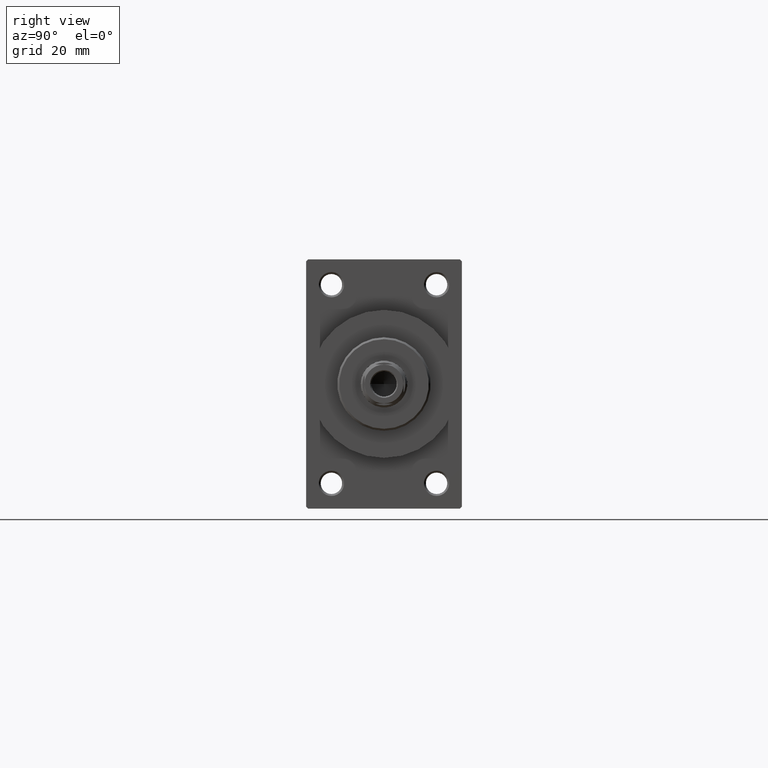
[diagram: clean part render]
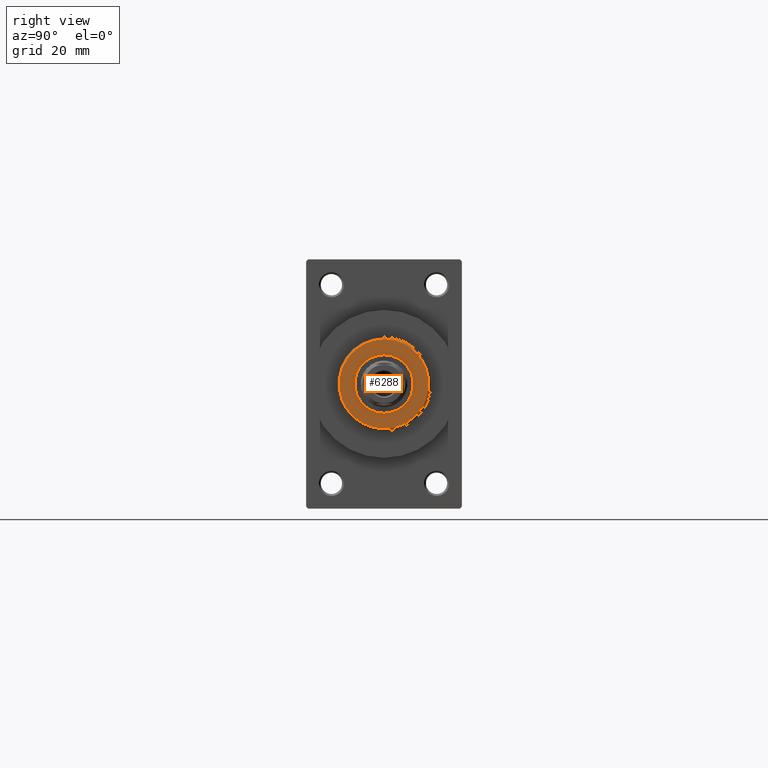
[diagram: same view with one face highlighted and labeled with its STEP entity id]
A machine part, right view. The second image highlights one B-rep face of the part: STEP entity #6288.
In plain terms, the highlighted planar face has unit normal (1, -0, -0).
Its self-contained STEP definition (entity closure, byte-faithful):
#1863 = AXIS2_PLACEMENT_3D ( 'NONE', #11728, #16950, #9825 ) ;
#3137 = ORIENTED_EDGE ( 'NONE', *, *, #20584, .F. ) ;
#3553 = VERTEX_POINT ( 'NONE', #35398 ) ;
#4023 = CIRCLE ( 'NONE', #38258, 7.500000000000000888 ) ;
#5534 = AXIS2_PLACEMENT_3D ( 'NONE', #17486, #46792, #32965 ) ;
#6288 = ADVANCED_FACE ( 'NONE', ( #31653, #20456 ), #16394, .T. ) ;
#7211 = CARTESIAN_POINT ( 'NONE',  ( 11.50000000000000355, 1.438959988998140357E-15, 50.25999999999999801 ) ) ;
#7361 = VERTEX_POINT ( 'NONE', #7211 ) ;
#9040 = DIRECTION ( 'NONE',  ( 0.000000000000000000, 0.000000000000000000, 1.000000000000000000 ) ) ;
#9825 = DIRECTION ( 'NONE',  ( 1.000000000000000000, 0.000000000000000000, 0.000000000000000000 ) ) ;
#11728 = CARTESIAN_POINT ( 'NONE',  ( 0.000000000000000000, 0.000000000000000000, 50.25999999999999801 ) ) ;
#14297 = ORIENTED_EDGE ( 'NONE', *, *, #25635, .T. ) ;
#15631 = CARTESIAN_POINT ( 'NONE',  ( 0.000000000000000000, 0.000000000000000000, 50.25999999999999801 ) ) ;
#16394 = PLANE ( 'NONE',  #24024 ) ;
#16863 = CARTESIAN_POINT ( 'NONE',  ( 0.000000000000000000, 0.000000000000000000, 50.25999999999999801 ) ) ;
#16950 = DIRECTION ( 'NONE',  ( 0.000000000000000000, 0.000000000000000000, 1.000000000000000000 ) ) ;
#17486 = CARTESIAN_POINT ( 'NONE',  ( 0.000000000000000000, 0.000000000000000000, 50.25999999999999801 ) ) ;
#17765 = CIRCLE ( 'NONE', #28426, 11.50000000000000355 ) ;
#17766 = VERTEX_POINT ( 'NONE', #31430 ) ;
#18569 = EDGE_CURVE ( 'NONE', #3553, #26526, #33671, .T. ) ;
#20310 = ORIENTED_EDGE ( 'NONE', *, *, #26906, .T. ) ;
#20456 = FACE_OUTER_BOUND ( 'NONE', #24825, .T. ) ;
#20584 = EDGE_CURVE ( 'NONE', #26526, #3553, #4023, .T. ) ;
#24024 = AXIS2_PLACEMENT_3D ( 'NONE', #16863, #9040, #41890 ) ;
#24825 = EDGE_LOOP ( 'NONE', ( #20310, #14297 ) ) ;
#25425 = DIRECTION ( 'NONE',  ( 0.000000000000000000, 0.000000000000000000, 1.000000000000000000 ) ) ;
#25635 = EDGE_CURVE ( 'NONE', #7361, #17766, #17765, .T. ) ;
#26526 = VERTEX_POINT ( 'NONE', #30858 ) ;
#26906 = EDGE_CURVE ( 'NONE', #17766, #7361, #35304, .T. ) ;
#28194 = DIRECTION ( 'NONE',  ( 0.000000000000000000, 0.000000000000000000, 1.000000000000000000 ) ) ;
#28426 = AXIS2_PLACEMENT_3D ( 'NONE', #15631, #25425, #37547 ) ;
#30858 = CARTESIAN_POINT ( 'NONE',  ( 7.500000000000000888, 0.000000000000000000, 50.25999999999999801 ) ) ;
#31430 = CARTESIAN_POINT ( 'NONE',  ( -11.50000000000000355, 0.000000000000000000, 50.25999999999999801 ) ) ;
#31653 = FACE_BOUND ( 'NONE', #38469, .T. ) ;
#32965 = DIRECTION ( 'NONE',  ( 1.000000000000000000, 0.000000000000000000, 0.000000000000000000 ) ) ;
#33671 = CIRCLE ( 'NONE', #5534, 7.500000000000000888 ) ;
#35304 = CIRCLE ( 'NONE', #1863, 11.50000000000000355 ) ;
#35398 = CARTESIAN_POINT ( 'NONE',  ( -7.500000000000000888, 9.184850993605149917E-16, 50.25999999999999801 ) ) ;
#37089 = ORIENTED_EDGE ( 'NONE', *, *, #18569, .F. ) ;
#37547 = DIRECTION ( 'NONE',  ( 1.000000000000000000, 0.000000000000000000, 0.000000000000000000 ) ) ;
#38258 = AXIS2_PLACEMENT_3D ( 'NONE', #42247, #28194, #46516 ) ;
#38469 = EDGE_LOOP ( 'NONE', ( #3137, #37089 ) ) ;
#41890 = DIRECTION ( 'NONE',  ( 1.000000000000000000, 0.000000000000000000, -0.000000000000000000 ) ) ;
#42247 = CARTESIAN_POINT ( 'NONE',  ( 0.000000000000000000, 0.000000000000000000, 50.25999999999999801 ) ) ;
#46516 = DIRECTION ( 'NONE',  ( 1.000000000000000000, 0.000000000000000000, 0.000000000000000000 ) ) ;
#46792 = DIRECTION ( 'NONE',  ( 0.000000000000000000, 0.000000000000000000, 1.000000000000000000 ) ) ;